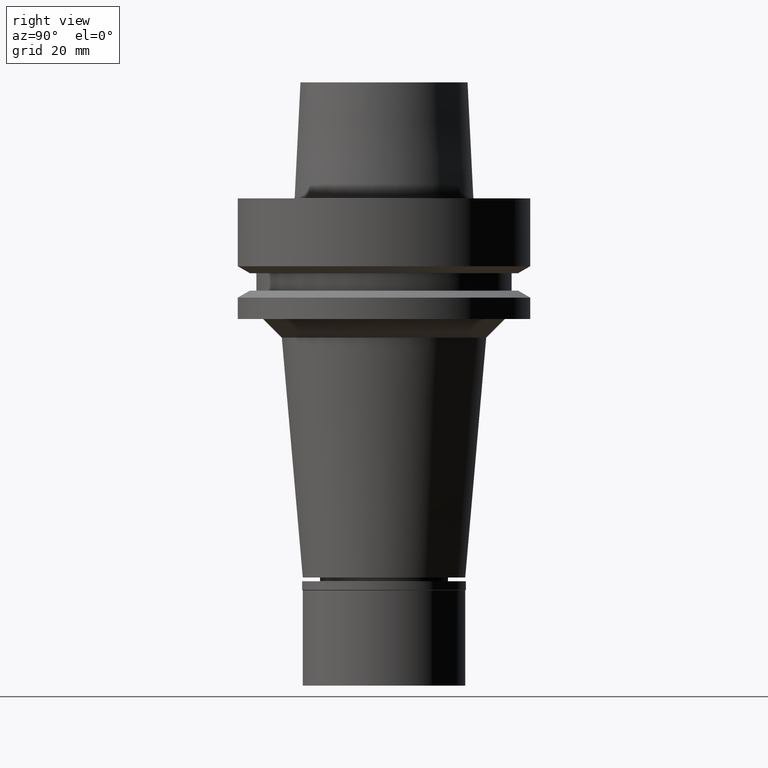
[diagram: clean part render]
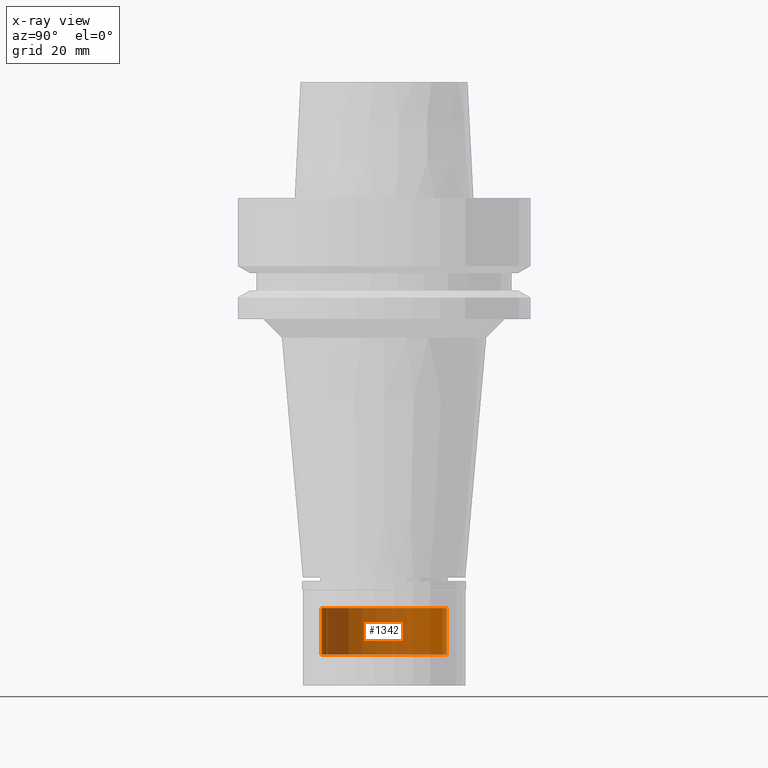
[diagram: x-ray — body ghosted, one internal face saturated and labeled with its STEP entity id]
A machine part, right view, then the same camera in x-ray: the body is ghosted and one INTERNAL B-rep face — a face not visible from any outside direction — is saturated and labeled: STEP entity #1342.
In plain terms, the highlighted cylindrical surface (partial cylindrical patch) has radius 13.5 mm, axis along (0, 0, 1).
Its self-contained STEP definition (entity closure, byte-faithful):
#43 = AXIS2_PLACEMENT_3D ( 'NONE', #2776, #2312, #798 ) ;
#145 = VERTEX_POINT ( 'NONE', #1000 ) ;
#240 = DIRECTION ( 'NONE',  ( 0.0000000000000000000, 0.0000000000000000000, -1.000000000000000000 ) ) ;
#403 = CARTESIAN_POINT ( 'NONE',  ( 0.0000000000000000000, 0.0000000000000000000, -98.29999999999999716 ) ) ;
#540 = ORIENTED_EDGE ( 'NONE', *, *, #786, .T. ) ;
#662 = DIRECTION ( 'NONE',  ( 0.0000000000000000000, 1.000000000000000000, 0.0000000000000000000 ) ) ;
#782 = CARTESIAN_POINT ( 'NONE',  ( 0.0000000000000000000, 13.50000000000000000, -98.29999999999999716 ) ) ;
#786 = EDGE_CURVE ( 'NONE', #1163, #1300, #1663, .T. ) ;
#798 = DIRECTION ( 'NONE',  ( 0.0000000000000000000, 1.000000000000000000, 0.0000000000000000000 ) ) ;
#894 = CIRCLE ( 'NONE', #1085, 13.50000000000000000 ) ;
#919 = VERTEX_POINT ( 'NONE', #2795 ) ;
#946 = CARTESIAN_POINT ( 'NONE',  ( 0.0000000000000000000, 0.0000000000000000000, -88.29999999999999716 ) ) ;
#1000 = CARTESIAN_POINT ( 'NONE',  ( 0.0000000000000000000, -13.50000000000000000, -88.29999999999999716 ) ) ;
#1085 = AXIS2_PLACEMENT_3D ( 'NONE', #946, #240, #2249 ) ;
#1163 = VERTEX_POINT ( 'NONE', #2466 ) ;
#1266 = ORIENTED_EDGE ( 'NONE', *, *, #1756, .F. ) ;
#1300 = VERTEX_POINT ( 'NONE', #782 ) ;
#1342 = ADVANCED_FACE ( 'NONE', ( #2352 ), #2079, .T. ) ;
#1500 = ORIENTED_EDGE ( 'NONE', *, *, #2757, .T. ) ;
#1589 = AXIS2_PLACEMENT_3D ( 'NONE', #403, #2635, #662 ) ;
#1663 = LINE ( 'NONE', #2766, #2332 ) ;
#1718 = DIRECTION ( 'NONE',  ( 0.0000000000000000000, 0.0000000000000000000, -1.000000000000000000 ) ) ;
#1719 = ORIENTED_EDGE ( 'NONE', *, *, #2860, .T. ) ;
#1756 = EDGE_CURVE ( 'NONE', #145, #919, #2611, .T. ) ;
#2079 = CYLINDRICAL_SURFACE ( 'NONE', #43, 13.50000000000000000 ) ;
#2249 = DIRECTION ( 'NONE',  ( 0.0000000000000000000, -1.000000000000000000, 0.0000000000000000000 ) ) ;
#2312 = DIRECTION ( 'NONE',  ( 0.0000000000000000000, 0.0000000000000000000, 1.000000000000000000 ) ) ;
#2332 = VECTOR ( 'NONE', #2574, 1000.000000000000000 ) ;
#2352 = FACE_OUTER_BOUND ( 'NONE', #2812, .T. ) ;
#2373 = CARTESIAN_POINT ( 'NONE',  ( 0.0000000000000000000, -13.50000000000000000, -88.29999999999999716 ) ) ;
#2466 = CARTESIAN_POINT ( 'NONE',  ( 0.0000000000000000000, 13.50000000000000000, -88.29999999999999716 ) ) ;
#2500 = CIRCLE ( 'NONE', #1589, 13.50000000000000000 ) ;
#2574 = DIRECTION ( 'NONE',  ( 0.0000000000000000000, 0.0000000000000000000, -1.000000000000000000 ) ) ;
#2611 = LINE ( 'NONE', #2373, #2729 ) ;
#2635 = DIRECTION ( 'NONE',  ( 0.0000000000000000000, 0.0000000000000000000, 1.000000000000000000 ) ) ;
#2729 = VECTOR ( 'NONE', #1718, 1000.000000000000000 ) ;
#2757 = EDGE_CURVE ( 'NONE', #1300, #919, #2500, .T. ) ;
#2766 = CARTESIAN_POINT ( 'NONE',  ( 0.0000000000000000000, 13.50000000000000000, -88.29999999999999716 ) ) ;
#2776 = CARTESIAN_POINT ( 'NONE',  ( 0.0000000000000000000, 0.0000000000000000000, -104.4650000000000034 ) ) ;
#2795 = CARTESIAN_POINT ( 'NONE',  ( 0.0000000000000000000, -13.50000000000000000, -98.29999999999999716 ) ) ;
#2812 = EDGE_LOOP ( 'NONE', ( #1500, #1266, #1719, #540 ) ) ;
#2860 = EDGE_CURVE ( 'NONE', #145, #1163, #894, .T. ) ;